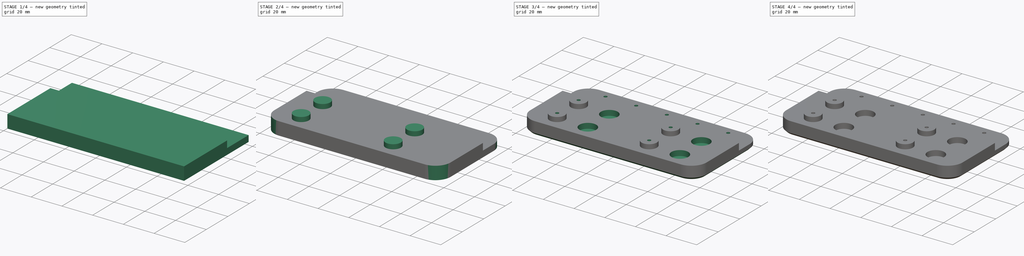
[diagram: build sequence overview — one tinted view per stage of 4, left to right]
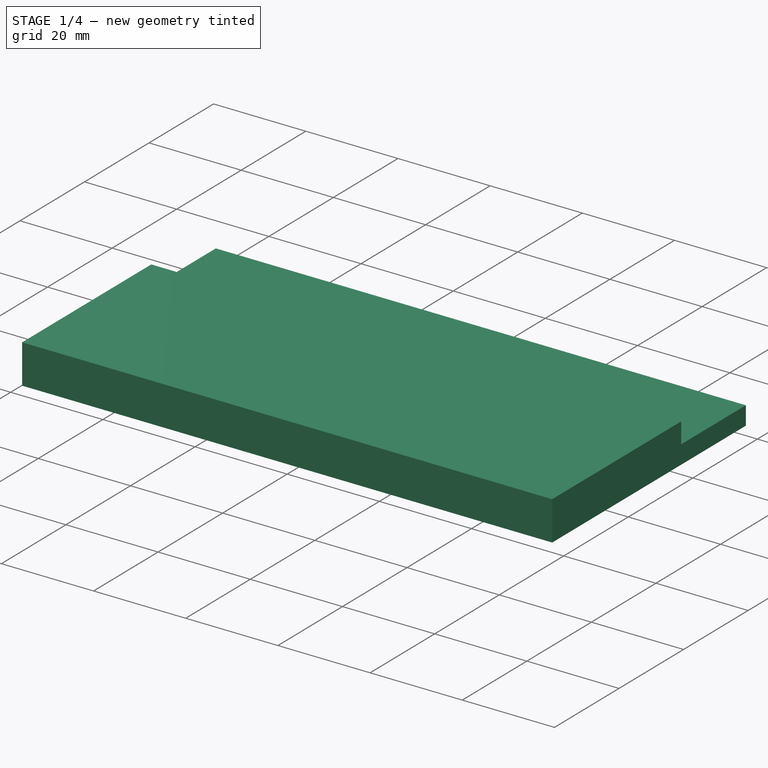
[diagram: stage 1 of 4 — iso view after this stage's code; geometry added in this stage tinted green]
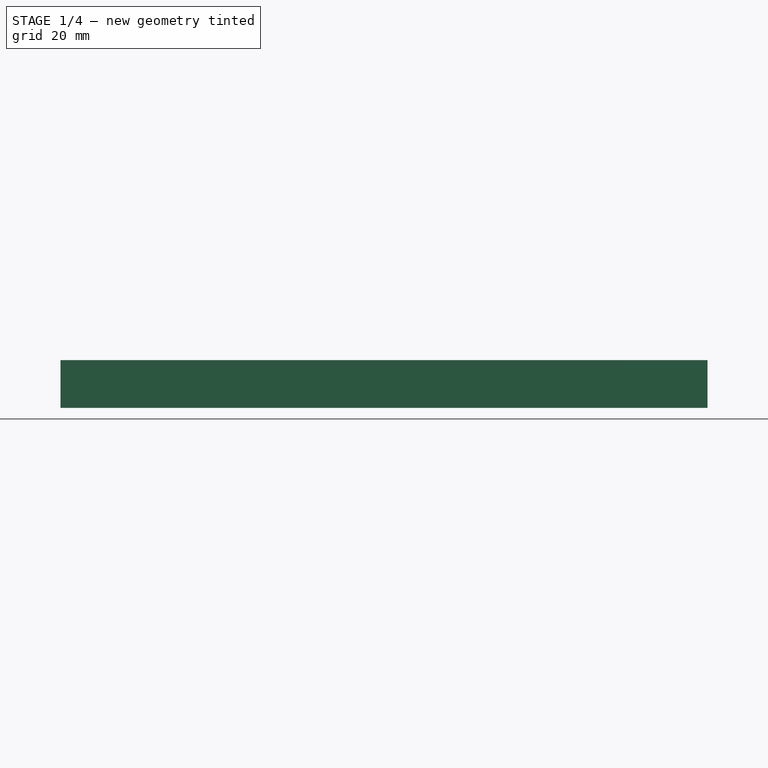
[diagram: stage 1 of 4 — front view after this stage's code; geometry added in this stage tinted green]
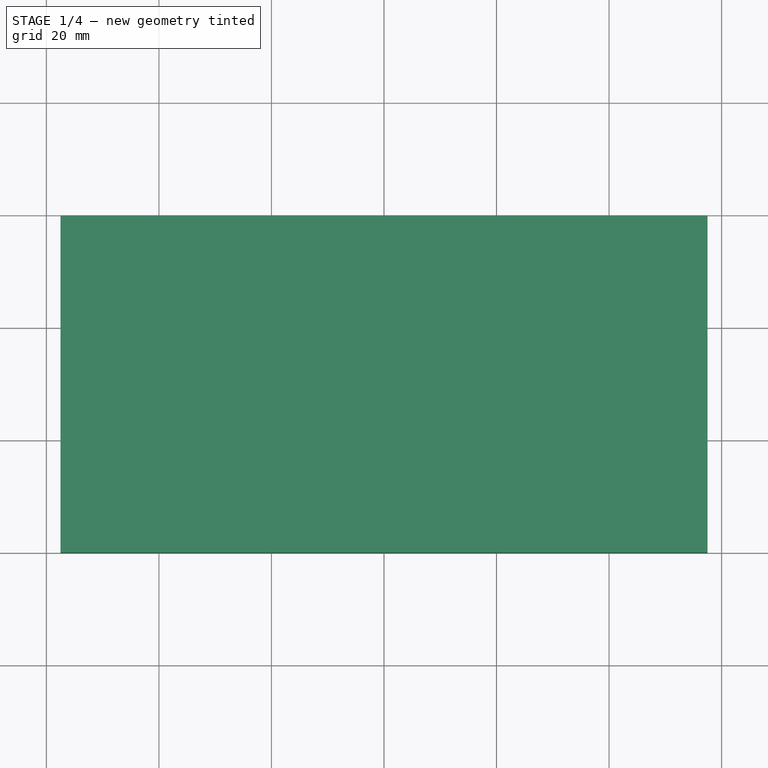
[diagram: stage 1 of 4 — top view after this stage's code; geometry added in this stage tinted green]
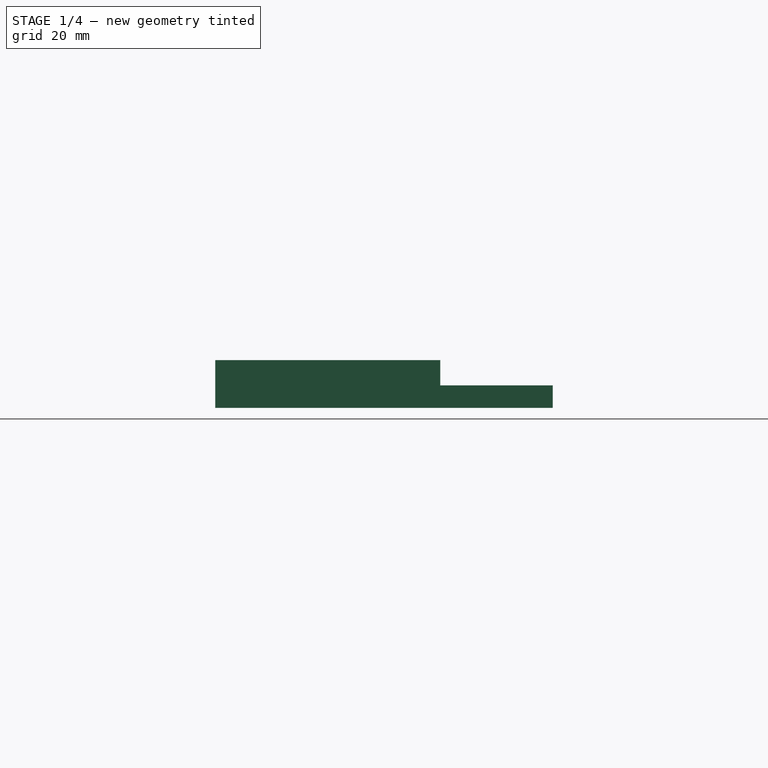
[diagram: stage 1 of 4 — right view after this stage's code; geometry added in this stage tinted green]
FCSTD DOCUMENT  (FreeCAD 0.18R15969 (Git))
Label: stencil_knife_handle
License: All rights reserved
LicenseURL: http://en.wikipedia.org/wiki/All_rights_reserved
objects: Sketcher::SketchObject×6, PartDesign::Pad×3, PartDesign::Pocket×3, PartDesign::Fillet×1, PartDesign::Chamfer×1, PartDesign::Draft×1, PartDesign::Body×1
note: 22 computed .brp shape members not serialized (recipe doc carries the construction recipe); baked Part::Feature solids carry a one-line shape summary decoded from their .brp

FEATURE [Sketcher::SketchObject] Sketch
  MapMode = 5
  Support = -> [XY_Plane]
  sketch-geometry (6):
    g0: LineSegment StartX=-57.5 StartY=0 StartZ=0 EndX=57.5 EndY=0 EndZ=0
    g1: LineSegment StartX=57.5 StartY=0 StartZ=0 EndX=57.5 EndY=-60 EndZ=0
    g2: LineSegment StartX=57.5 StartY=-60 StartZ=0 EndX=-57.5 EndY=-60 EndZ=0
    g3: LineSegment StartX=-57.5 StartY=-60 StartZ=0 EndX=-57.5 EndY=0 EndZ=0
    g4: LineSegment [constr] StartX=57.5 StartY=-60 StartZ=0 EndX=0 EndY=0 EndZ=0
    g5: LineSegment [constr] StartX=0 StartY=0 StartZ=0 EndX=-57.5 EndY=-60 EndZ=0
  constraints (16):
    c: Coincident(g0,g1)
    c: Coincident(g1,g2)
    c: Coincident(g2,g3)
    c: Coincident(g3,g0)
    c: Horizontal(g0)
    c: Horizontal(g2)
    c: Vertical(g1)
    c: Vertical(g3)
    c: PointOnObject(g0,g-1)
    c: Coincident(g4,g1)
    c: Coincident(g4,g-1)
    c: Coincident(g5,g-1)
    c: Coincident(g5,g2)
    c: Equal(g5,g4)
    c: DistanceX(g0,g0) = 115
    c: DistanceY(g3,g3) = 60
FEATURE [PartDesign::Pad] Pad
  Length = 4
  Length2 = 100
  Profile = -> Sketch
  Refine = true
  Type = 0
FEATURE [Sketcher::SketchObject] Sketch001
  ExternalGeometry = -> [Pad]
  MapMode = 5
  Placement = pos=(0,0,4) rot=(0,0,1;0rad)
  Support = -> [Pad]
  sketch-geometry (4):
    g0: LineSegment StartX=-57.5 StartY=-60 StartZ=0 EndX=57.5 EndY=-60 EndZ=0
    g1: LineSegment StartX=57.5 StartY=-60 StartZ=0 EndX=57.5 EndY=-20 EndZ=0
    g2: LineSegment StartX=57.5 StartY=-20 StartZ=0 EndX=-57.5 EndY=-20 EndZ=0
    g3: LineSegment StartX=-57.5 StartY=-20 StartZ=0 EndX=-57.5 EndY=-60 EndZ=0
  constraints (11):
    c: Coincident(g0,g1)
    c: Coincident(g1,g2)
    c: Coincident(g2,g3)
    c: Coincident(g3,g0)
    c: Horizontal(g0)
    c: Horizontal(g2)
    c: Vertical(g1)
    c: Vertical(g3)
    c: Coincident(g0,g-3)
    c: PointOnObject(g-3,g1)
    c: DistanceY(g2,g-1) = 20
FEATURE [PartDesign::Pad] Pad001
  BaseFeature = -> Pad
  Length = 4.5
  Length2 = 100
  Profile = -> Sketch001
  Refine = true
  Type = 0
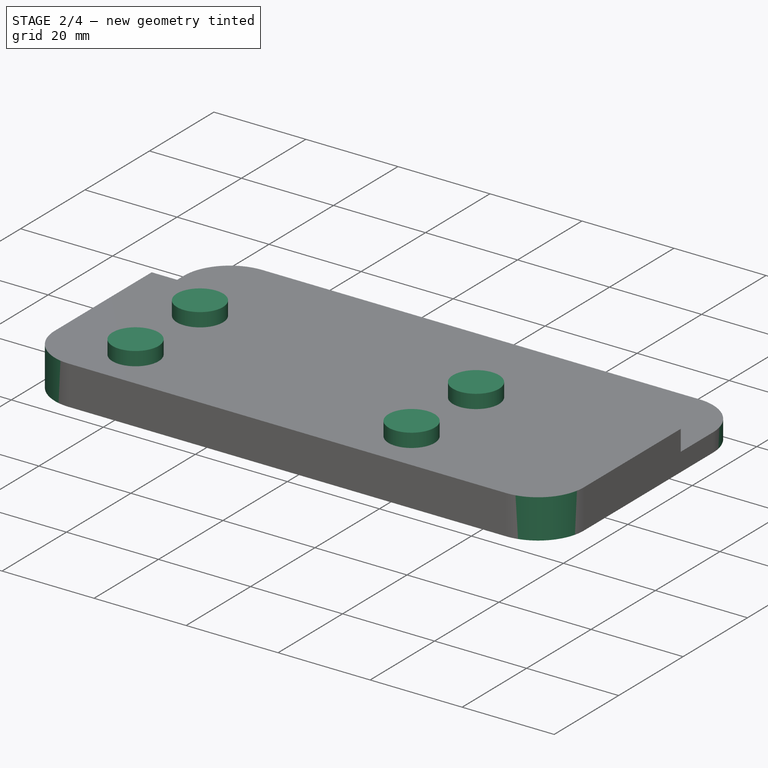
[diagram: stage 2 of 4 — iso view after this stage's code; geometry added in this stage tinted green]
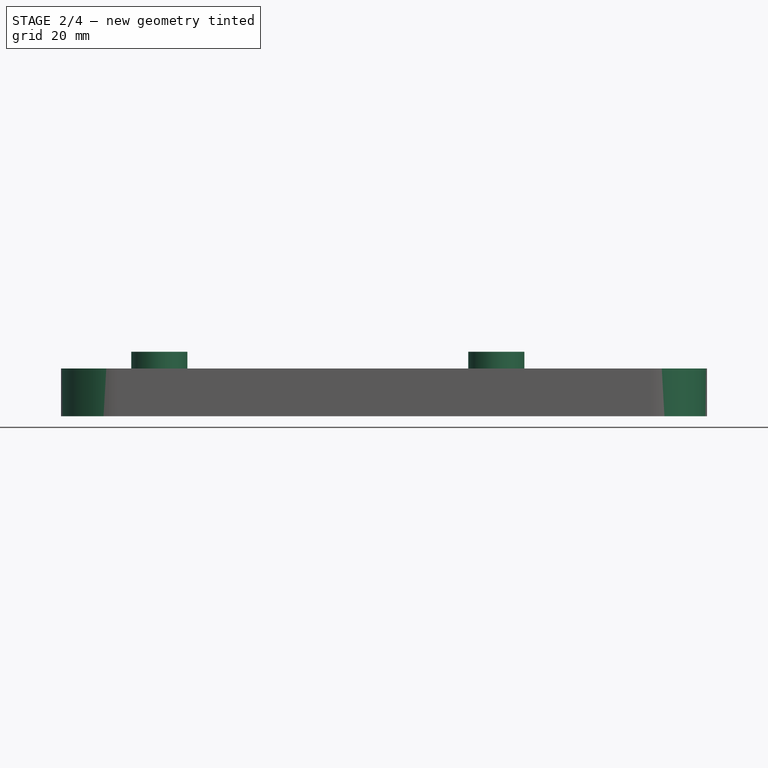
[diagram: stage 2 of 4 — front view after this stage's code; geometry added in this stage tinted green]
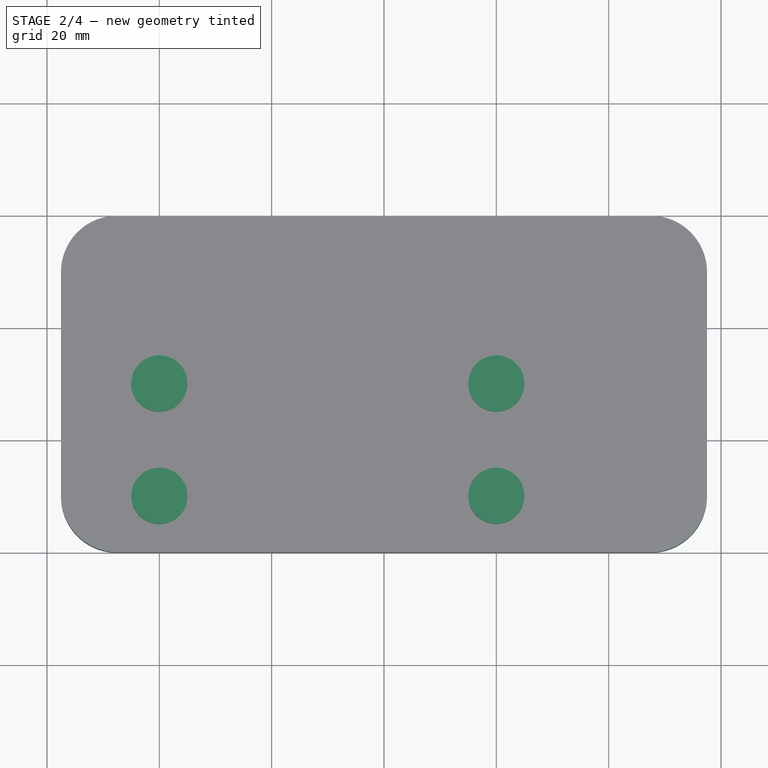
[diagram: stage 2 of 4 — top view after this stage's code; geometry added in this stage tinted green]
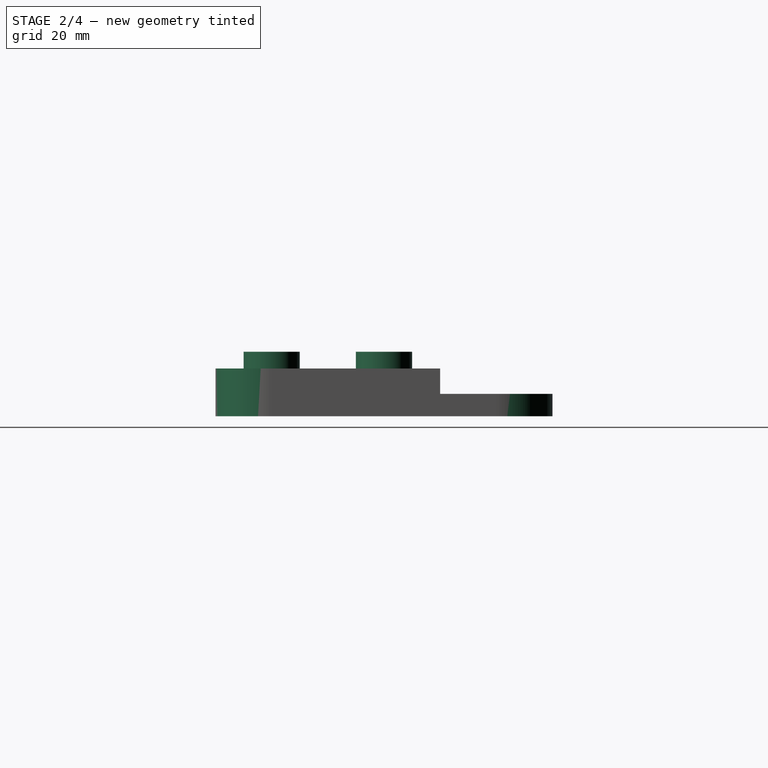
[diagram: stage 2 of 4 — right view after this stage's code; geometry added in this stage tinted green]
FEATURE [PartDesign::Fillet] Fillet
  Base = -> Pad001 [Edge1,Edge17,Edge18,Edge2]
  BaseFeature = -> Pad001
  Radius = 10
FEATURE [Sketcher::SketchObject] Sketch002
  MapMode = 5
  Placement = pos=(0,0,8.5) rot=(0,0,1;0rad)
  Support = -> [Fillet]
  sketch-geometry (4):
    g0: Circle CenterX=-40 CenterY=-30 CenterZ=0 NormalX=0 NormalY=0 NormalZ=1 AngleXU=0 Radius=5
    g1: Circle CenterX=-40 CenterY=-50 CenterZ=0 NormalX=0 NormalY=0 NormalZ=1 AngleXU=0 Radius=5
    g2: Circle CenterX=20 CenterY=-30 CenterZ=0 NormalX=0 NormalY=0 NormalZ=1 AngleXU=0 Radius=5
    g3: Circle CenterX=20 CenterY=-50 CenterZ=0 NormalX=0 NormalY=0 NormalZ=1 AngleXU=0 Radius=5
  constraints (4):
    c: Radius(g0) = 5
    c: Equal(g0,g1)
    c: Equal(g0,g2)
    c: Equal(g0,g3)
FEATURE [PartDesign::Pad] Pad002
  BaseFeature = -> Fillet
  Length = 3
  Length2 = 100
  Profile = -> Sketch002
  Refine = true
  Type = 0
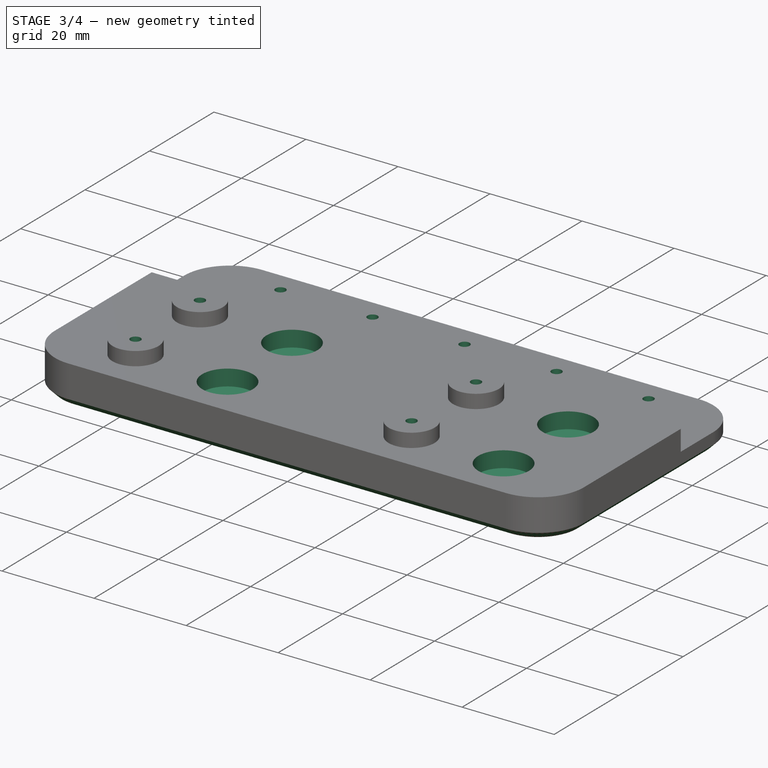
[diagram: stage 3 of 4 — iso view after this stage's code; geometry added in this stage tinted green]
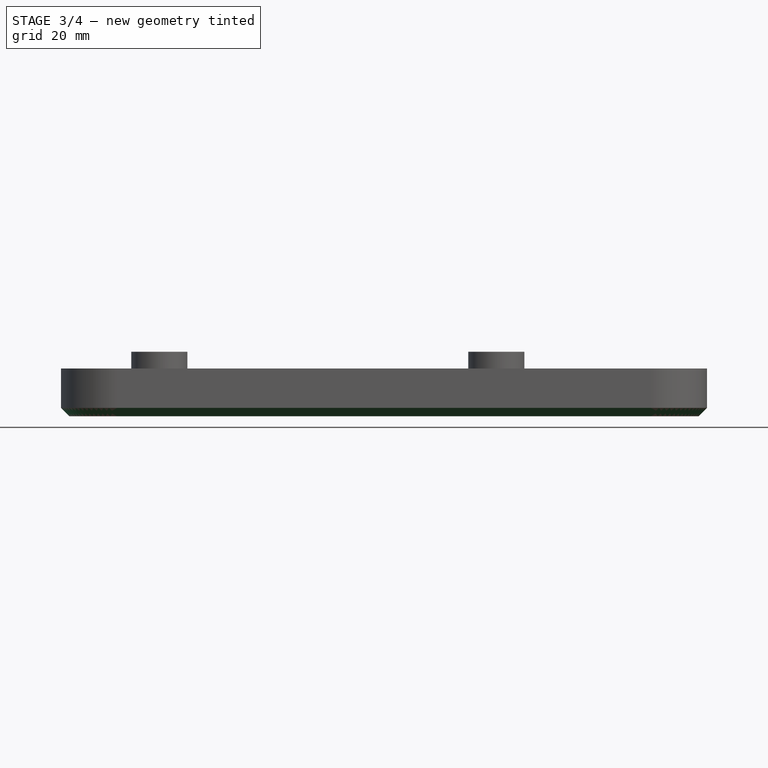
[diagram: stage 3 of 4 — front view after this stage's code; geometry added in this stage tinted green]
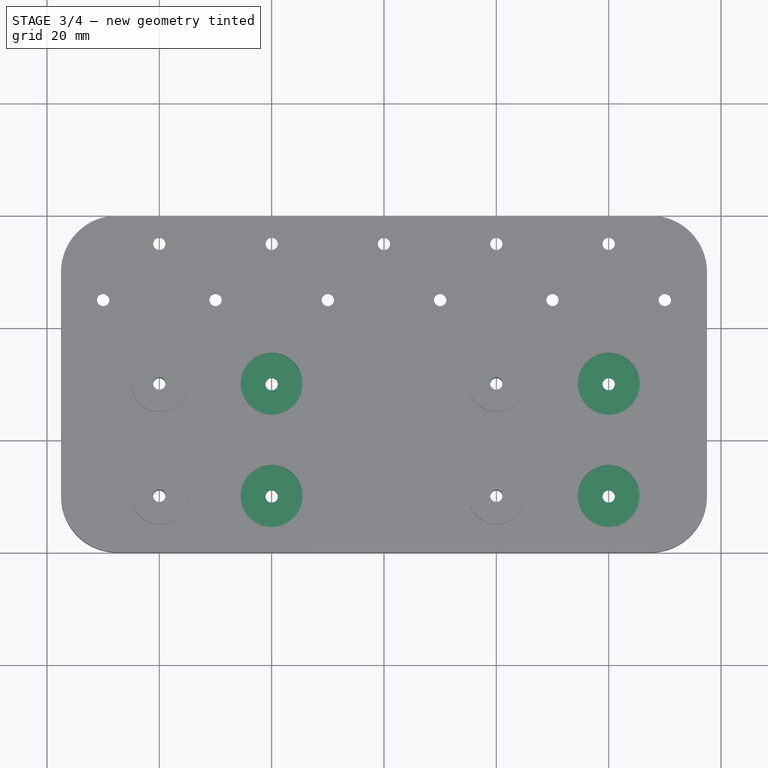
[diagram: stage 3 of 4 — top view after this stage's code; geometry added in this stage tinted green]
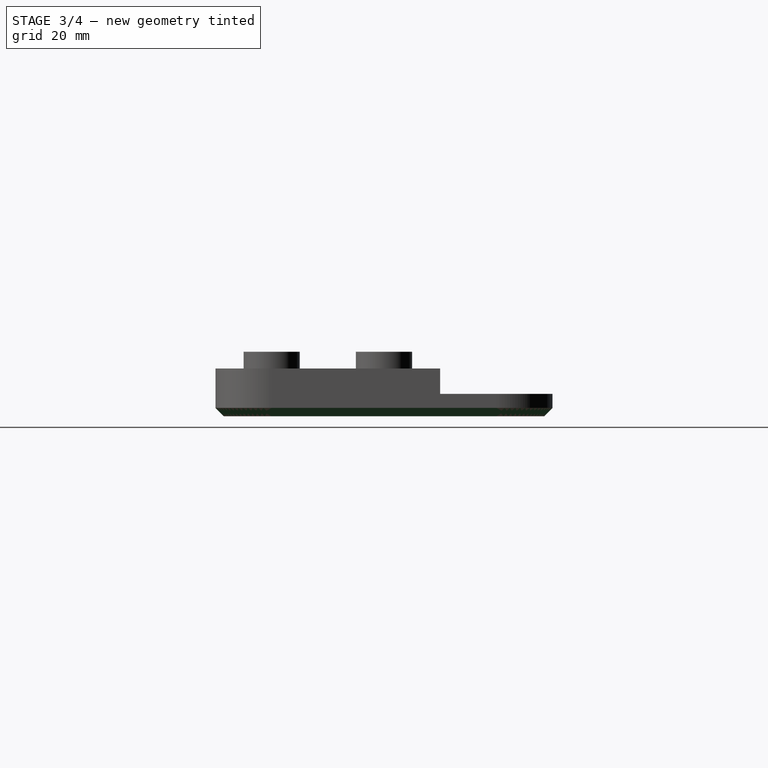
[diagram: stage 3 of 4 — right view after this stage's code; geometry added in this stage tinted green]
FEATURE [Sketcher::SketchObject] Sketch003
  MapMode = 5
  Placement = pos=(0,0,8.5) rot=(0,0,1;0rad)
  Support = -> [Pad002]
  sketch-geometry (4):
    g0: Circle CenterX=40 CenterY=-30 CenterZ=0 NormalX=0 NormalY=0 NormalZ=1 AngleXU=0 Radius=5.5
    g1: Circle CenterX=40 CenterY=-50 CenterZ=0 NormalX=0 NormalY=0 NormalZ=1 AngleXU=0 Radius=5.5
    g2: Circle CenterX=-20 CenterY=-30 CenterZ=0 NormalX=0 NormalY=0 NormalZ=1 AngleXU=0 Radius=5.5
    g3: Circle CenterX=-20 CenterY=-50 CenterZ=0 NormalX=0 NormalY=0 NormalZ=1 AngleXU=0 Radius=5.5
  constraints (4):
    c: Radius(g3) = 5.5
    c: Equal(g3,g2)
    c: Equal(g3,g0)
    c: Equal(g3,g1)
FEATURE [PartDesign::Pocket] Pocket
  BaseFeature = -> Pad002
  Length = 3.5
  Length2 = 100
  Profile = -> Sketch003
  Refine = true
  Type = 0
FEATURE [Sketcher::SketchObject] Sketch004
  MapMode = 5
  Placement = pos=(0,0,11.5) rot=(0,0,1;0rad)
  Support = -> [Pocket]
  sketch-geometry (19):
    g0: Circle CenterX=-40 CenterY=-30 CenterZ=0 NormalX=0 NormalY=0 NormalZ=1 AngleXU=0 Radius=1.1
    g1: Circle CenterX=-20 CenterY=-30 CenterZ=0 NormalX=0 NormalY=0 NormalZ=1 AngleXU=0 Radius=1.1
    g2: Circle CenterX=-40 CenterY=-50 CenterZ=0 NormalX=0 NormalY=0 NormalZ=1 AngleXU=0 Radius=1.1
    g3: Circle CenterX=-20 CenterY=-50 CenterZ=0 NormalX=0 NormalY=0 NormalZ=1 AngleXU=0 Radius=1.1
    g4: Circle CenterX=20 CenterY=-30 CenterZ=0 NormalX=0 NormalY=0 NormalZ=1 AngleXU=0 Radius=1.1
    g5: Circle CenterX=40 CenterY=-30 CenterZ=0 NormalX=0 NormalY=0 NormalZ=1 AngleXU=0 Radius=1.1
    g6: Circle CenterX=40 CenterY=-50 CenterZ=0 NormalX=0 NormalY=0 NormalZ=1 AngleXU=0 Radius=1.1
    g7: Circle CenterX=20 CenterY=-50 CenterZ=0 NormalX=0 NormalY=0 NormalZ=1 AngleXU=0 Radius=1.1
    g8: Circle CenterX=-40 CenterY=-5 CenterZ=0 NormalX=0 NormalY=0 NormalZ=1 AngleXU=0 Radius=1.1
    g9: Circle CenterX=-50 CenterY=-15 CenterZ=0 NormalX=0 NormalY=0 NormalZ=1 AngleXU=0 Radius=1.1
    g10: Circle CenterX=-30 CenterY=-15 CenterZ=0 NormalX=0 NormalY=0 NormalZ=1 AngleXU=0 Radius=1.1
    g11: Circle CenterX=-20 CenterY=-5 CenterZ=0 NormalX=0 NormalY=0 NormalZ=1 AngleXU=0 Radius=1.1
    g12: Circle CenterX=-10 CenterY=-15 CenterZ=0 NormalX=0 NormalY=0 NormalZ=1 AngleXU=0 Radius=1.1
    g13: Circle CenterX=0 CenterY=-5 CenterZ=0 NormalX=0 NormalY=0 NormalZ=1 AngleXU=0 Radius=1.1
    g14: Circle CenterX=10 CenterY=-15 CenterZ=0 NormalX=0 NormalY=0 NormalZ=1 AngleXU=0 Radius=1.1
    g15: Circle CenterX=20 CenterY=-5 CenterZ=0 NormalX=0 NormalY=0 NormalZ=1 AngleXU=0 Radius=1.1
    g16: Circle CenterX=30 CenterY=-15 CenterZ=0 NormalX=0 NormalY=0 NormalZ=1 AngleXU=0 Radius=1.1
    g17: Circle CenterX=40 CenterY=-5 CenterZ=0 NormalX=0 NormalY=0 NormalZ=1 AngleXU=0 Radius=1.1
    g18: Circle CenterX=50 CenterY=-15 CenterZ=0 NormalX=0 NormalY=0 NormalZ=1 AngleXU=0 Radius=1.1
  constraints (3):
    c: PointOnObject(g13,g-2)
    c: Radius(g0) = 1.1
    c: Equal(g0, g1-g18) x18
FEATURE [PartDesign::Pocket] Pocket001
  BaseFeature = -> Pocket
  Length = 5
  Length2 = 100
  Profile = -> Sketch004
  Refine = true
  Type = 1
FEATURE [PartDesign::Chamfer] Chamfer
  Base = -> Pocket001 [Face2]
  BaseFeature = -> Pocket001
  Size = 1.5
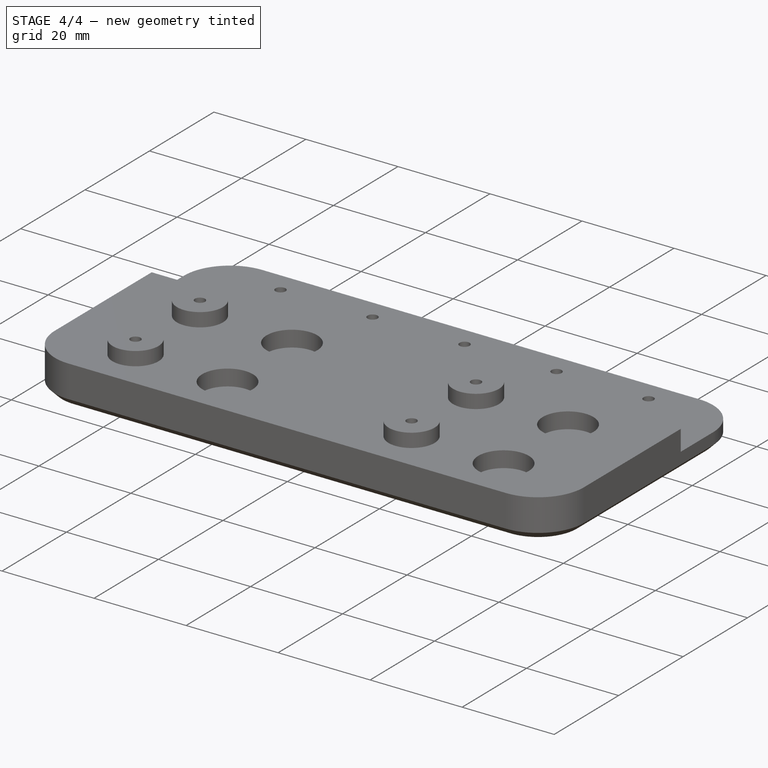
[diagram: stage 4 of 4 — iso view after this stage's code; geometry added in this stage tinted green]
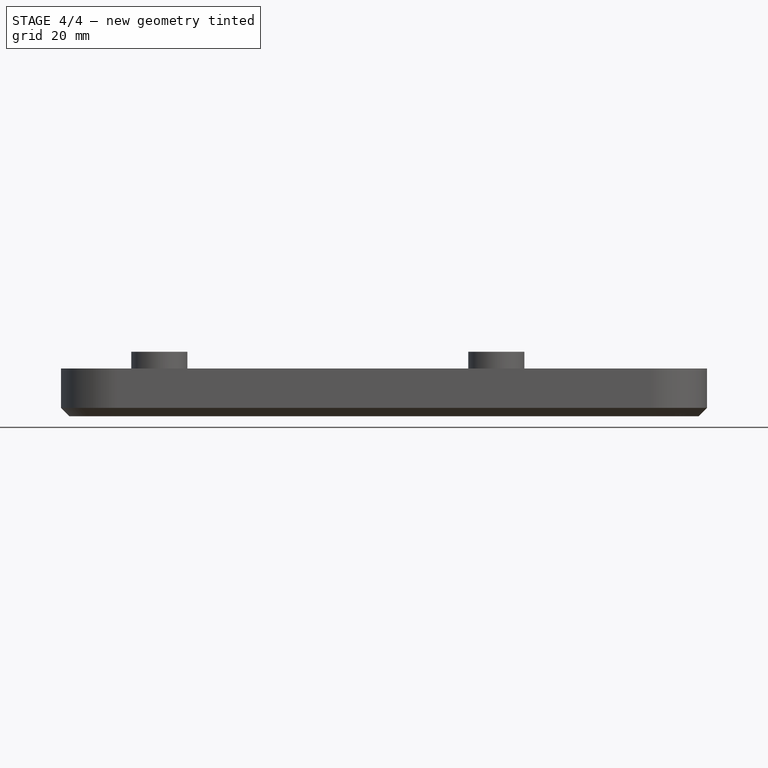
[diagram: stage 4 of 4 — front view after this stage's code; geometry added in this stage tinted green]
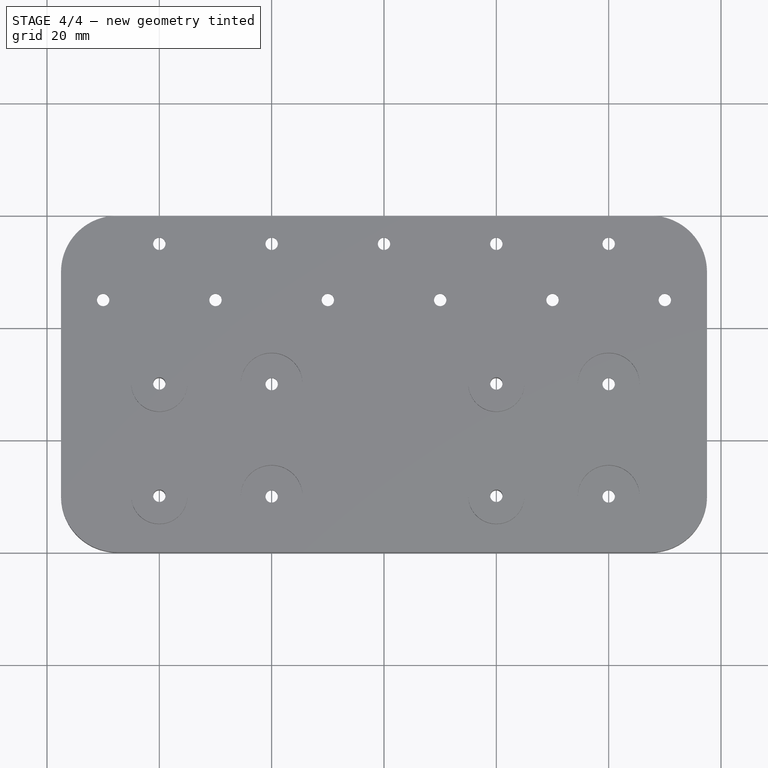
[diagram: stage 4 of 4 — top view after this stage's code; geometry added in this stage tinted green]
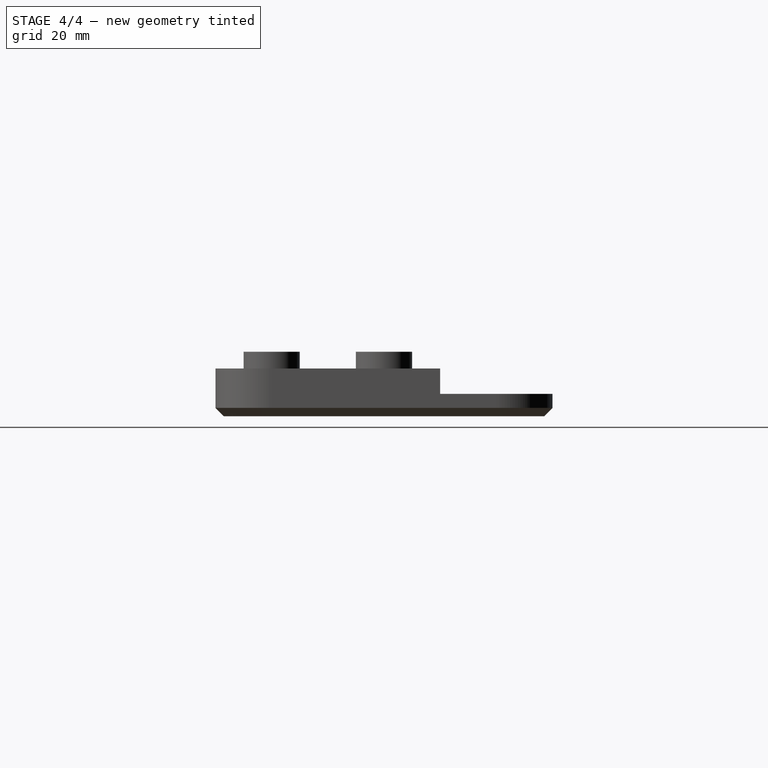
[diagram: stage 4 of 4 — right view after this stage's code; geometry added in this stage tinted green]
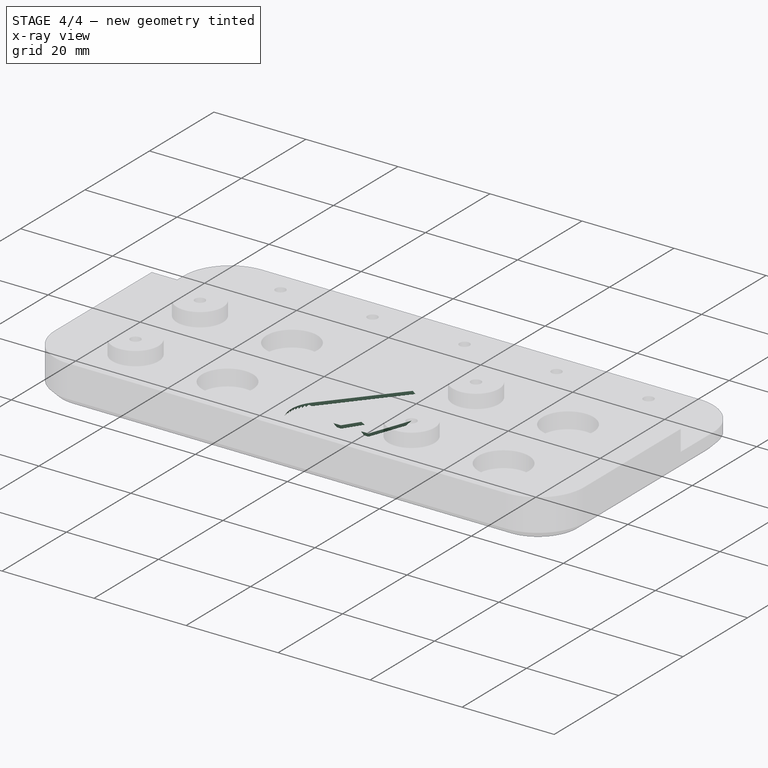
[diagram: stage 4 of 4 — x-ray composite at the iso view; earlier geometry ghosted, this stage's added geometry solid]
FEATURE [Sketcher::SketchObject] Sketch005
  MapMode = 5
  Placement = pos=(0,0,0) rot=(1,0,0;3.14159rad)
  Support = -> [Chamfer]
  sketch-geometry (19):
    g0: ArcOfCircle CenterX=-6.4265 CenterY=39.7332 CenterZ=0 NormalX=0 NormalY=0 NormalZ=1 AngleXU=0 Radius=7.5 StartAngle=0.541636 EndAngle=3.83197
    g1: ArcOfCircle CenterX=6.4265 CenterY=39.7332 CenterZ=0 NormalX=0 NormalY=0 NormalZ=1 AngleXU=0 Radius=7.5 StartAngle=5.59281 EndAngle=8.88314
    g2: LineSegment StartX=-12.209 StartY=34.957 StartZ=0 EndX=3.6e-15 EndY=20.1756 EndZ=0
    g3: LineSegment StartX=1.8e-15 StartY=20.1756 StartZ=0 EndX=12.209 EndY=34.957 EndZ=0
    g4: LineSegment [constr] StartX=-6.4265 StartY=39.7332 StartZ=0 EndX=6.4265 EndY=39.7332 EndZ=0
    g5: LineSegment StartX=-6.23752 StartY=32.0287 StartZ=0 EndX=-4.50555 EndY=32.0287 EndZ=0
    g6: LineSegment StartX=-4.50555 StartY=32.0287 StartZ=0 EndX=-2.54725 EndY=37.4258 EndZ=0
    g7: LineSegment StartX=-2.54725 StartY=37.4258 StartZ=0 EndX=-4e-16 EndY=33.5461 EndZ=0
    g8: LineSegment StartX=0 StartY=33.5461 StartZ=0 EndX=2.54725 EndY=37.4258 EndZ=0
    g9: LineSegment StartX=2.54725 StartY=37.4258 StartZ=0 EndX=4.50555 EndY=32.0287 EndZ=0
    g10: LineSegment StartX=4.50555 StartY=32.0287 StartZ=0 EndX=6.23752 EndY=32.0287 EndZ=0
    g11: LineSegment StartX=6.23752 StartY=32.0287 StartZ=0 EndX=3.44197 EndY=39.7332 EndZ=0
    g12: LineSegment StartX=3.44197 StartY=39.7332 StartZ=0 EndX=2.47436 EndY=39.7332 EndZ=0
    g13: LineSegment StartX=2.47436 StartY=39.7332 StartZ=0 EndX=0 EndY=35.9646 EndZ=0
    g14: LineSegment StartX=0 StartY=35.9646 StartZ=0 EndX=-2.47436 EndY=39.7332 EndZ=0
    g15: LineSegment StartX=-2.47436 StartY=39.7332 StartZ=0 EndX=-3.44197 EndY=39.7332 EndZ=0
    g16: LineSegment StartX=-3.44197 StartY=39.7332 StartZ=0 EndX=-6.23752 EndY=32.0287 EndZ=0
    g17: LineSegment [constr] StartX=-4.50555 StartY=32.0287 StartZ=0 EndX=0 EndY=32.0287 EndZ=0
    g18: LineSegment [constr] StartX=0 StartY=32.0287 StartZ=0 EndX=4.50555 EndY=32.0287 EndZ=0
  constraints (45):
    c: PointOnObject(g0,g-2)
    c: Coincident(g1,g0)
    c: Coincident(g3,g2)
    c: Tangent(g3,g1) = -1.5708
    c: Tangent(g2,g0) = -1.5708
    c: Radius(g0) = 7.5
    c: Equal(g0,g1)
    c: PointOnObject(g2,g-2)
    c: Coincident(g4,g0)
    c: Coincident(g4,g1)
    c: Horizontal(g4)
    c: Horizontal(g5)
    c: Coincident(g6,g5)
    c: Coincident(g7,g6)
    c: PointOnObject(g7,g-2)
    c: Coincident(g8,g7)
    c: Coincident(g9,g8)
    c: Coincident(g10,g9)
    c: Horizontal(g10)
    c: Coincident(g10,g11)
    c: Coincident(g11,g12)
    c: Coincident(g12,g13)
    c: PointOnObject(g13,g-2)
    c: Coincident(g13,g14)
    c: Coincident(g14,g15)
    c: Horizontal(g15)
    c: Coincident(g15,g16)
    c: Coincident(g16,g5)
    c: PointOnObject(g14,g4)
    c: PointOnObject(g12,g4)
    c: Horizontal(g12)
    c: Equal(g12,g15)
    c: Equal(g14,g13)
    c: Equal(g11,g16)
    c: Equal(g5,g10)
    c: Coincident(g17,g5)
    c: PointOnObject(g17,g-2)
    c: Coincident(g18,g17)
    c: Coincident(g18,g9)
    c: Horizontal(g18)
    c: Horizontal(g17)
    c: Equal(g6,g9)
    c: Equal(g8,g7)
    c: Parallel(g6,g16)
    c: Parallel(g7,g14)
FEATURE [PartDesign::Pocket] Pocket002
  BaseFeature = -> Chamfer
  Length = 1
  Length2 = 100
  Profile = -> Sketch005
  Refine = true
  Type = 0
FEATURE [PartDesign::Draft] Draft
  Angle = 30
  Base = -> Pocket002 [Face39,Face38,Face36,Face37,Face85,Face84,Face83,Face82,Face81,Face80,Face91,Face86,Face87,Face90,Face89,Face88]
  BaseFeature = -> Pocket002
  NeutralPlane = -> Pocket002 [Face8]
FEATURE [PartDesign::Body] Body
  Group = -> [Sketch,Pad,Sketch001,Pad001,Fillet,Sketch002,Pad002,Sketch003,Pocket,Sketch004,Pocket001,Chamfer,Sketch005,Pocket002,Draft]
  Origin = -> Origin
  Tip = -> Draft
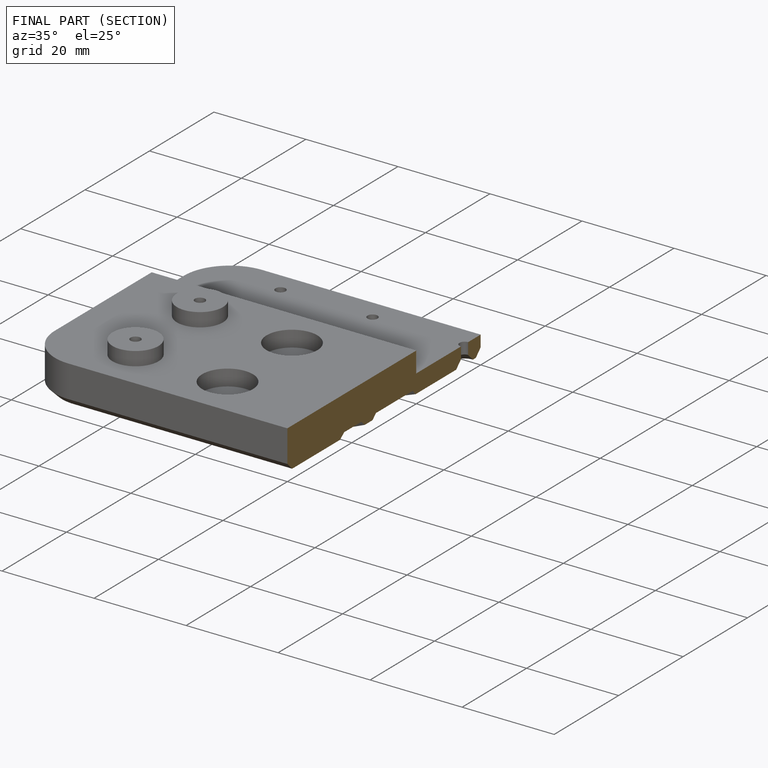
[diagram: finished part — half-section view (interior)]
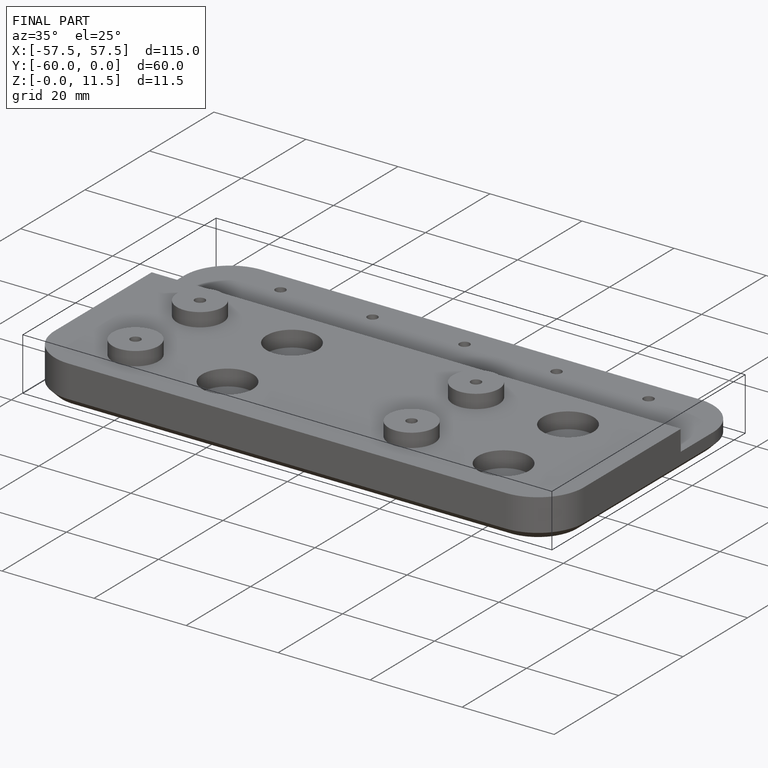
[diagram: finished part — iso view with bounding-box wireframe]
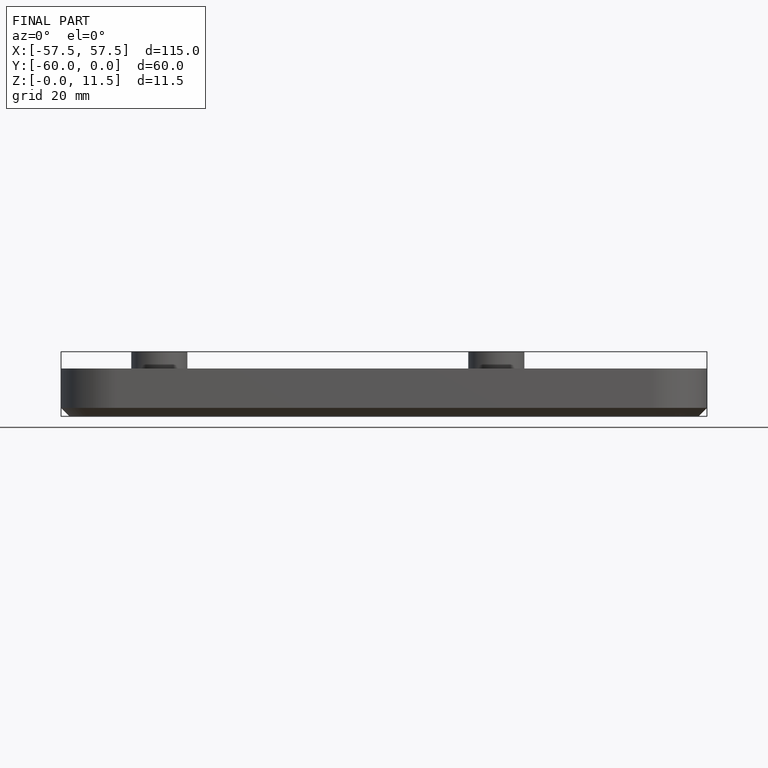
[diagram: finished part — front view with bounding-box wireframe]
